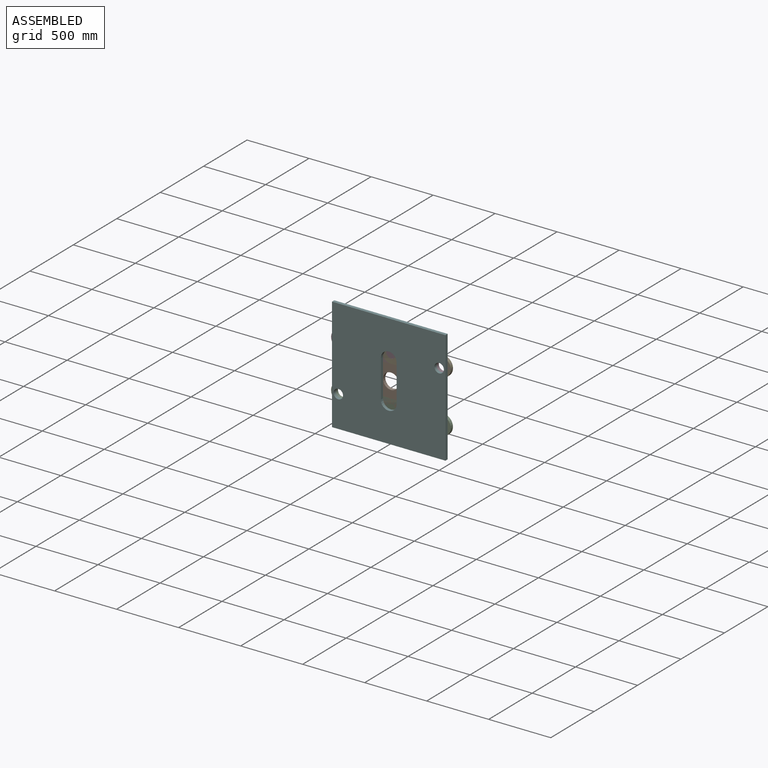
[diagram: assembled view]
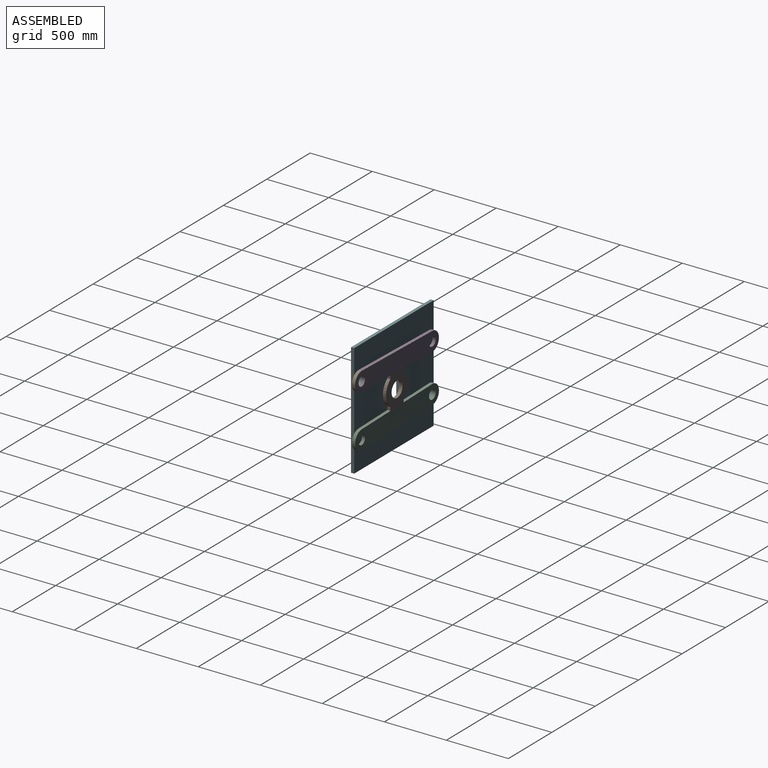
[diagram: assembled view, second angle]
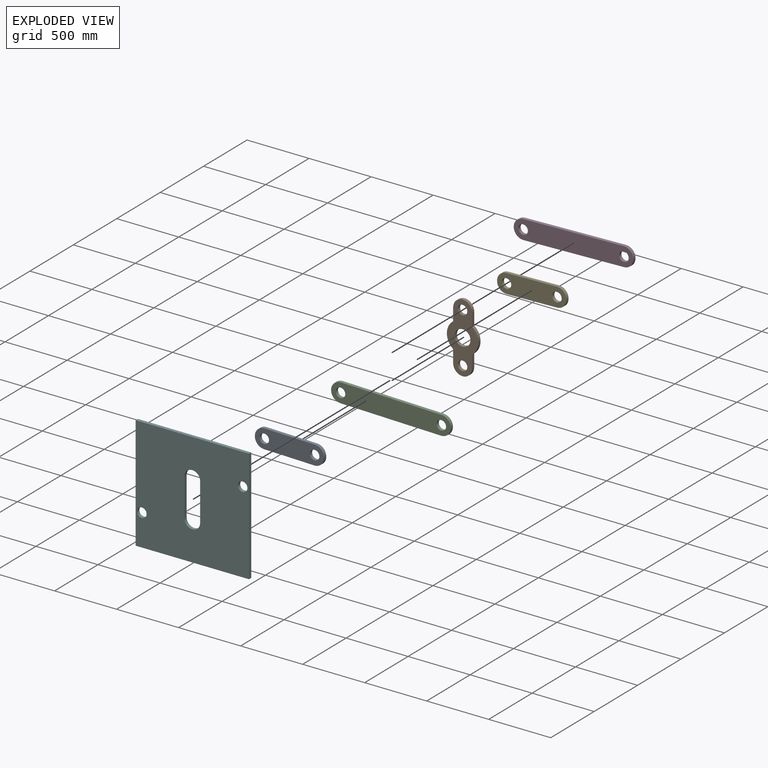
[diagram: exploded view]
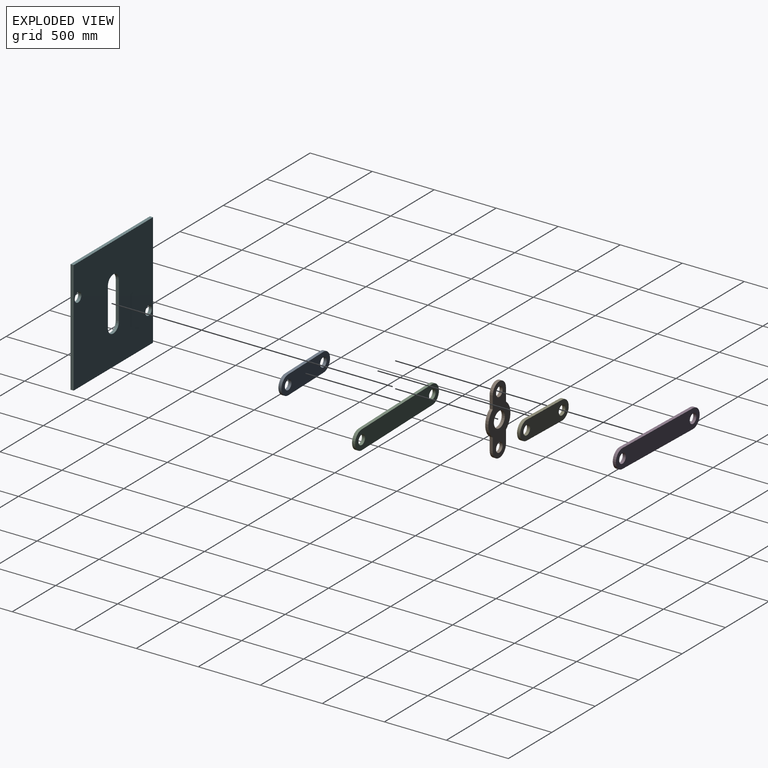
[diagram: exploded view, second angle]
ASSEMBLY  parts=6 mates=6
PART A: 8 faces, bbox 558.8x25.4x152.4 mm
  f0: plane 406.4x25.4mm, normal (0,0,1), area 10322.6mm2, adj f1,f4,f6,f7
  f1: cylinder r=76.2mm len=152.4mm, axis (0,1,0), area 6080.5mm2, adj f0,f2,f6,f7
  f2: plane 406.4x25.4mm, normal (0,0,-1), area 10322.6mm2, adj f1,f4,f6,f7
  f3: cylinder r=38.1mm len=76.2mm, axis (0,1,0), area 6080.5mm2, adj f6,f7
  f4: cylinder r=76.2mm len=152.4mm, axis (0,1,0), area 6080.5mm2, adj f0,f2,f6,f7
  f5: cylinder r=38.1mm len=76.2mm, axis (0,1,0), area 6080.5mm2, adj f6,f7
  f6: plane 558.8x152.4mm, normal (0,-1,0), area 71056.1mm2, adj f0,f1,f2,f3,f4,f5
  f7: plane 558.8x152.4mm, normal (0,1,0), area 71056.1mm2, adj f0,f1,f2,f3,f4,f5
PART B: 13 faces, bbox 558.8x25.4x254 mm
  f0: plane 101.6x25.4mm, normal (0,0,1), area 2580.6mm2, adj f3,f8,f9,f11
  f1: plane 101.6x25.4mm, normal (0,0,-1), area 2580.6mm2, adj f3,f8,f9,f10
  f2: plane 101.6x25.4mm, normal (0,0,1), area 2580.6mm2, adj f6,f8,f9,f11
  f3: cylinder r=76.2mm len=152.4mm, axis (0,1,0), area 6080.5mm2, adj f0,f1,f8,f9
  f4: plane 101.6x25.4mm, normal (0,0,-1), area 2580.6mm2, adj f6,f8,f9,f10
  f5: cylinder r=38.1mm len=76.2mm, axis (0,1,0), area 6080.5mm2, adj f8,f9
  f6: cylinder r=76.2mm len=152.4mm, axis (0,1,0), area 6080.5mm2, adj f2,f4,f8,f9
  f7: cylinder r=38.1mm len=76.2mm, axis (0,1,0), area 6080.5mm2, adj f8,f9
  f8: plane 558.8x254mm, normal (0,-1,0), area 72817.3mm2, adj f0,f1,f2,f3,f4,f5,f6,f7
  f9: plane 558.8x254mm, normal (0,1,0), area 72817.3mm2, adj f0,f1,f2,f3,f4,f5,f6,f7
  f10: cylinder r=127mm len=203.2mm, axis (0,1,0), area 5982.5mm2, adj f1,f4,f8,f9
  f11: cylinder r=127mm len=203.2mm, axis (0,1,0), area 5982.5mm2, adj f0,f2,f8,f9
  f12: cylinder r=63.5mm len=127mm, axis (0,1,0), area 10134.1mm2, adj f8,f9
PART C: 8 faces, bbox 965.2x25.4x152.4 mm
  f0: plane 812.8x25.4mm, normal (0,0,1), area 20645.1mm2, adj f1,f4,f5,f6
  f1: cylinder r=76.2mm len=152.4mm, axis (0,1,0), area 6080.5mm2, adj f0,f2,f4,f5
  f2: plane 812.8x25.4mm, normal (0,0,-1), area 20645.1mm2, adj f1,f4,f5,f6
  f3: cylinder r=38.1mm len=76.2mm, axis (0,1,0), area 6080.5mm2, adj f4,f5
  f4: plane 965.2x152.4mm, normal (0,-1,0), area 132991.5mm2, adj f0,f1,f2,f3,f6,f7
  f5: plane 965.2x152.4mm, normal (0,1,0), area 132991.5mm2, adj f0,f1,f2,f3,f6,f7
  f6: cylinder r=76.2mm len=152.4mm, axis (0,-1,0), area 6080.5mm2, adj f0,f2,f4,f5
  f7: cylinder r=38.1mm len=76.2mm, axis (0,-1,0), area 6080.5mm2, adj f4,f5
PART D: same geometry as C
PART E: same geometry as A
PART F: 12 faces, bbox 914.4x25.4x914.4 mm
  f0: plane 914.4x25.4mm, normal (0,0,1), area 23225.8mm2, adj f1,f9,f10,f11
  f1: plane 914.4x25.4mm, normal (-1,0,0), area 23225.8mm2, adj f0,f2,f10,f11
  f2: plane 914.4x25.4mm, normal (0,0,-1), area 23225.8mm2, adj f1,f9,f10,f11
  f3: plane 304.8x25.4mm, normal (1,0,0), area 7741.9mm2, adj f4,f6,f10,f11
  f4: cylinder r=63.5mm len=127mm, axis (0,-1,0), area 5067.1mm2, adj f3,f5,f10,f11
  f5: plane 304.8x25.4mm, normal (-1,0,0), area 7741.9mm2, adj f4,f6,f10,f11
  f6: cylinder r=63.5mm len=127mm, axis (0,-1,0), area 5067.1mm2, adj f3,f5,f10,f11
  f7: cylinder r=38.1mm len=76.2mm, axis (0,-1,0), area 6080.5mm2, adj f10,f11
  f8: cylinder r=38.1mm len=76.2mm, axis (0,-1,0), area 6080.5mm2, adj f10,f11
  f9: plane 914.4x25.4mm, normal (1,0,0), area 23225.8mm2, adj f0,f2,f10,f11
  f10: plane 914.4x914.4mm, normal (0,1,0), area 775629.3mm2, adj f0,f1,f2,f3,f4,f5,f6,f7
  f11: plane 914.4x914.4mm, normal (0,-1,0), area 775629.3mm2, adj f0,f1,f2,f3,f4,f5,f6,f7
PLACE A rot(axis=(0,1,0),1.4deg) t=(-891.21,162.7,-44.01)mm
PLACE B rot(axis=(0,-1,0),90deg) t=(-484.46,162.7,-53.45)mm
PLACE C rot(axis=(0,1,0),1.4deg) t=(-891.21,162.7,-44.01)mm
PLACE D rot(axis=(1,0,0.01),180deg) t=(-890.97,137.3,343.51)mm
PLACE E rot(axis=(0,-1,0),1.4deg) t=(-484.67,162.7,352.5)mm
PLACE F t=(-484.8,111.9,159.65)mm fixed
MATE fastened C.f3 <-> A.f3  axis (0,1,0) through (-891.2,162.7,-43.55)mm
MATE revolute A.f3 <-> F.f8  axis (0,-1,0) through (-891.2,137.3,-43.55)mm
MATE revolute F.f7 <-> E.f4  axis (0,1,0) through (-78.4,137.3,362.85)mm
MATE fastened D.f6 <-> E.f4  axis (0,1,0) through (-78.4,162.7,362.85)mm
MATE revolute B.f5 <-> A.f4  axis (0,1,0) through (-484.92,137.3,-53.45)mm
MATE cylindrical E.f3 <-> B.f6  axis (0,-1,0) through (-484.68,137.3,352.95)mm
